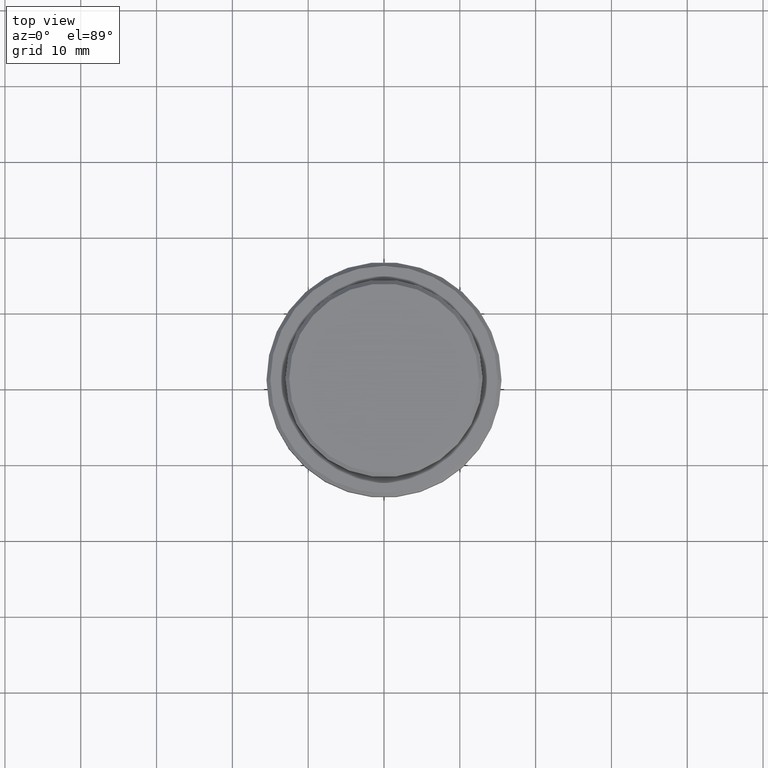
[diagram: clean part render]
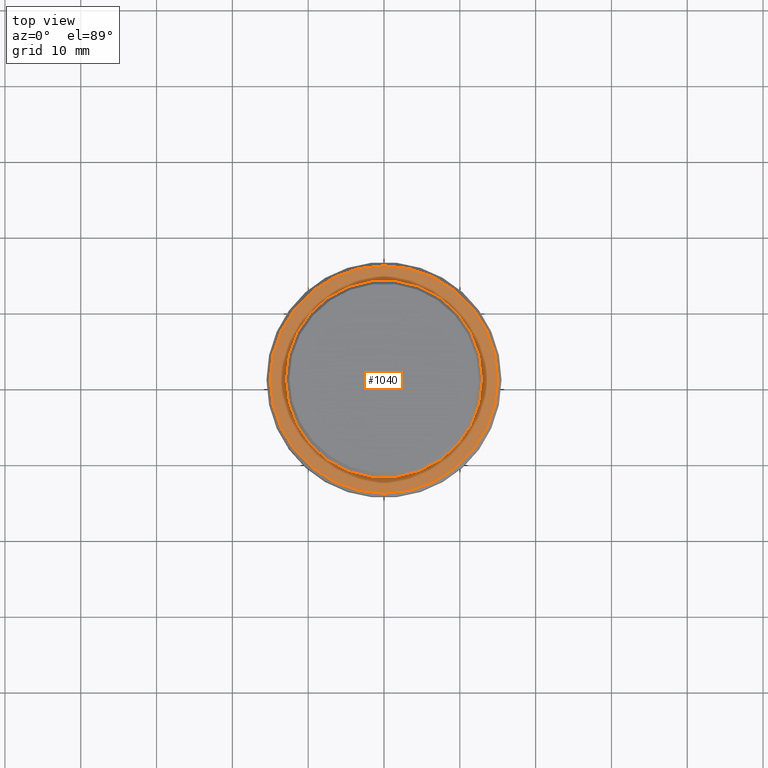
[diagram: same view with one face highlighted and labeled with its STEP entity id]
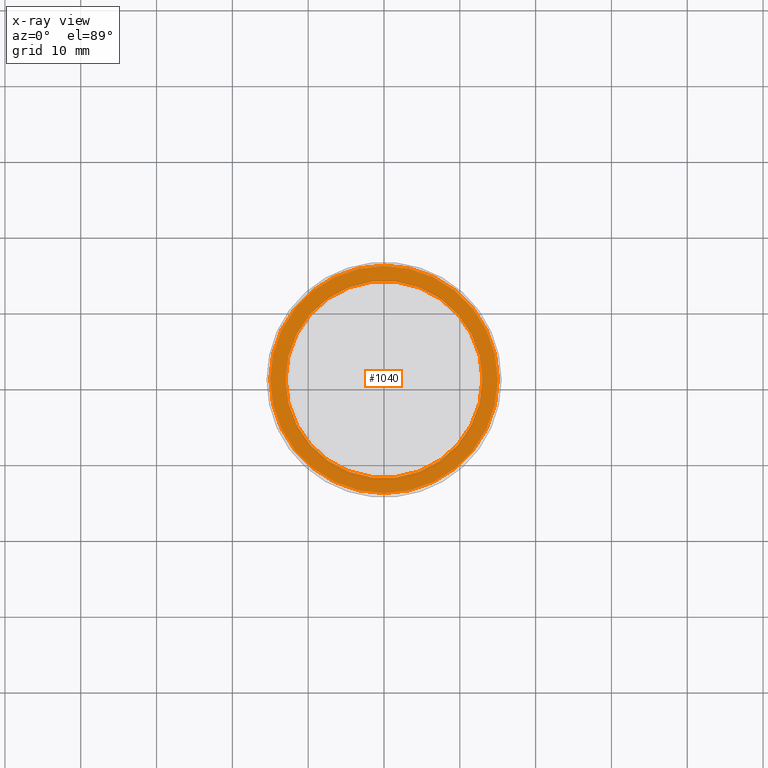
[diagram: x-ray of the same camera — body ghosted, the highlighted face saturated]
A machine part, top view. The second image highlights one B-rep face of the part: STEP entity #1040.
The next image is the same camera in x-ray: the body ghosted, the highlighted face saturated — about 0% of this face is hidden behind the body in this view.
In plain terms, the highlighted planar face has unit normal (0, -0, 1).
Its self-contained STEP definition (entity closure, byte-faithful):
#5 = DIRECTION ( 'NONE',  ( 0.000000000000000000, 0.000000000000000000, -1.000000000000000000 ) ) ;
#13 = DIRECTION ( 'NONE',  ( 1.000000000000000000, 0.000000000000000000, 0.000000000000000000 ) ) ;
#33 = CIRCLE ( 'NONE', #473, 15.00000000000001421 ) ;
#34 = AXIS2_PLACEMENT_3D ( 'NONE', #170, #952, #980 ) ;
#50 = FACE_BOUND ( 'NONE', #317, .T. ) ;
#75 = PLANE ( 'NONE',  #34 ) ;
#144 = DIRECTION ( 'NONE',  ( -0.000000000000000000, -0.000000000000000000, 1.000000000000000000 ) ) ;
#170 = CARTESIAN_POINT ( 'NONE',  ( 0.000000000000000000, 12.49999999999999289, -9.000000000000001776 ) ) ;
#196 = CIRCLE ( 'NONE', #948, 15.00000000000001421 ) ;
#204 = VERTEX_POINT ( 'NONE', #619 ) ;
#219 = EDGE_CURVE ( 'NONE', #1172, #204, #196, .T. ) ;
#239 = CARTESIAN_POINT ( 'NONE',  ( 0.000000000000000000, 0.000000000000000000, -9.000000000000001776 ) ) ;
#311 = CIRCLE ( 'NONE', #1355, 12.99999999999999467 ) ;
#317 = EDGE_LOOP ( 'NONE', ( #425, #828 ) ) ;
#396 = CARTESIAN_POINT ( 'NONE',  ( 0.000000000000000000, 0.000000000000000000, -9.000000000000001776 ) ) ;
#425 = ORIENTED_EDGE ( 'NONE', *, *, #813, .T. ) ;
#437 = EDGE_CURVE ( 'NONE', #583, #783, #1014, .T. ) ;
#450 = DIRECTION ( 'NONE',  ( 1.000000000000000000, 0.000000000000000000, 0.000000000000000000 ) ) ;
#473 = AXIS2_PLACEMENT_3D ( 'NONE', #396, #144, #712 ) ;
#476 = CARTESIAN_POINT ( 'NONE',  ( 0.000000000000000000, 0.000000000000000000, -9.000000000000001776 ) ) ;
#483 = DIRECTION ( 'NONE',  ( 0.000000000000000000, 0.000000000000000000, -1.000000000000000000 ) ) ;
#490 = EDGE_CURVE ( 'NONE', #204, #1172, #33, .T. ) ;
#583 = VERTEX_POINT ( 'NONE', #726 ) ;
#592 = EDGE_LOOP ( 'NONE', ( #1353, #793 ) ) ;
#619 = CARTESIAN_POINT ( 'NONE',  ( 15.00000000000001421, 1.867586368699714559E-15, -9.000000000000001776 ) ) ;
#702 = DIRECTION ( 'NONE',  ( 1.000000000000000000, 0.000000000000000000, 0.000000000000000000 ) ) ;
#712 = DIRECTION ( 'NONE',  ( 1.000000000000000000, 0.000000000000000000, 0.000000000000000000 ) ) ;
#726 = CARTESIAN_POINT ( 'NONE',  ( -12.99999999999999467, 1.592040838891558504E-15, -9.000000000000001776 ) ) ;
#735 = AXIS2_PLACEMENT_3D ( 'NONE', #942, #483, #702 ) ;
#751 = FACE_OUTER_BOUND ( 'NONE', #592, .T. ) ;
#769 = CARTESIAN_POINT ( 'NONE',  ( -15.00000000000001421, 0.000000000000000000, -9.000000000000001776 ) ) ;
#783 = VERTEX_POINT ( 'NONE', #1017 ) ;
#793 = ORIENTED_EDGE ( 'NONE', *, *, #490, .T. ) ;
#813 = EDGE_CURVE ( 'NONE', #783, #583, #311, .T. ) ;
#828 = ORIENTED_EDGE ( 'NONE', *, *, #437, .T. ) ;
#942 = CARTESIAN_POINT ( 'NONE',  ( 0.000000000000000000, 0.000000000000000000, -9.000000000000001776 ) ) ;
#948 = AXIS2_PLACEMENT_3D ( 'NONE', #476, #1341, #450 ) ;
#952 = DIRECTION ( 'NONE',  ( 0.000000000000000000, -0.000000000000000000, 1.000000000000000000 ) ) ;
#980 = DIRECTION ( 'NONE',  ( 1.000000000000000000, 0.000000000000000000, 0.000000000000000000 ) ) ;
#1014 = CIRCLE ( 'NONE', #735, 12.99999999999999467 ) ;
#1017 = CARTESIAN_POINT ( 'NONE',  ( 12.99999999999999467, 0.000000000000000000, -9.000000000000001776 ) ) ;
#1040 = ADVANCED_FACE ( 'NONE', ( #751, #50 ), #75, .T. ) ;
#1172 = VERTEX_POINT ( 'NONE', #769 ) ;
#1341 = DIRECTION ( 'NONE',  ( -0.000000000000000000, -0.000000000000000000, 1.000000000000000000 ) ) ;
#1353 = ORIENTED_EDGE ( 'NONE', *, *, #219, .T. ) ;
#1355 = AXIS2_PLACEMENT_3D ( 'NONE', #239, #5, #13 ) ;